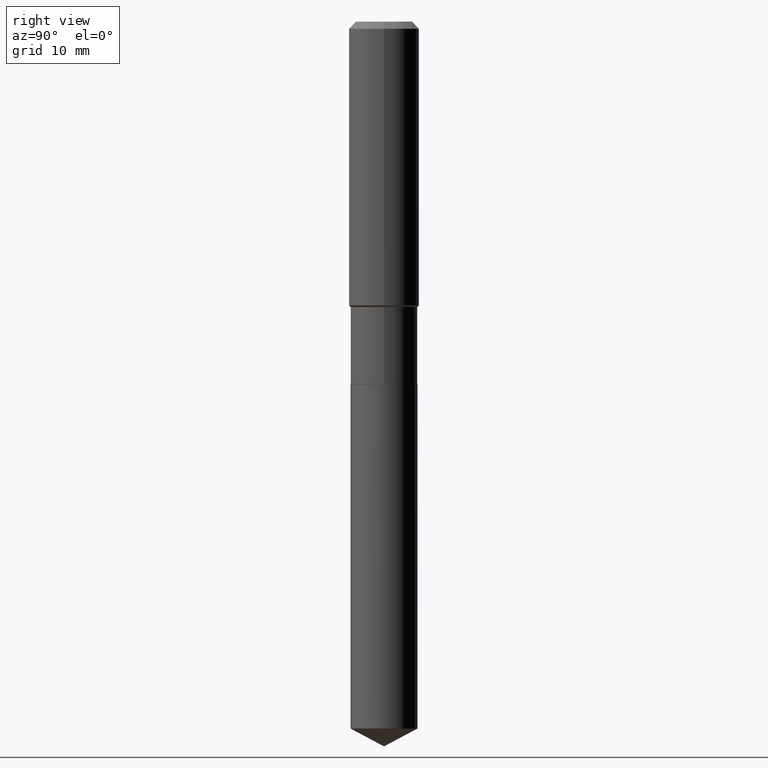
[diagram: clean part render]
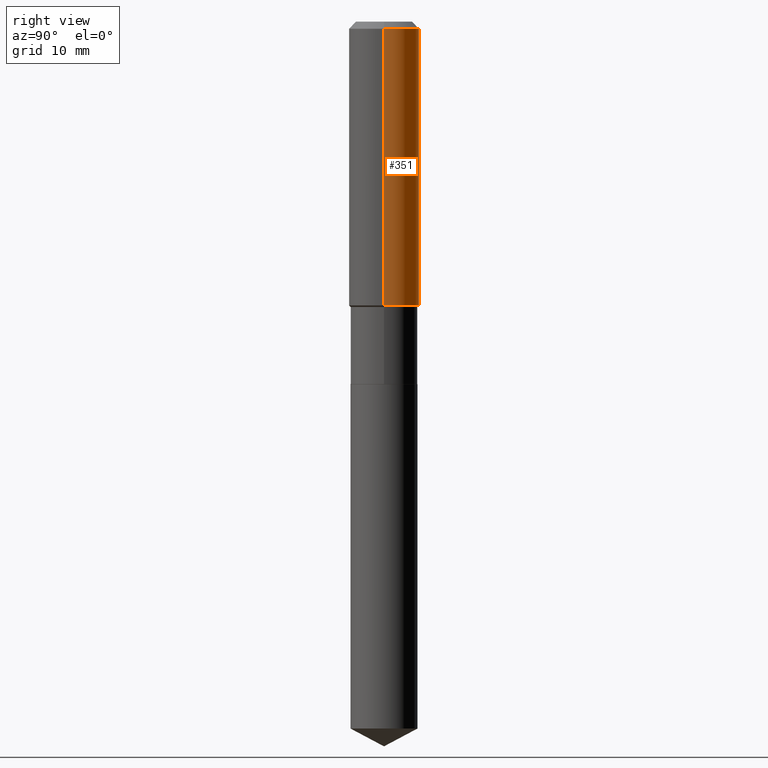
[diagram: same view with one face highlighted and labeled with its STEP entity id]
A machine part, right view. The second image highlights one B-rep face of the part: STEP entity #351.
In plain terms, the highlighted cylindrical surface (edge-blend (fillet) strip) has radius 5 mm, axis along (-0, 0, 1).
Its self-contained STEP definition (entity closure, byte-faithful):
#43 = VECTOR ( 'NONE', #86, 39.37007874015748143 ) ;
#49 = CARTESIAN_POINT ( 'NONE',  ( 0.1968500000000001082, -1.374596203102542397E-15, 9.598753983154305062E-30 ) ) ;
#56 = FACE_OUTER_BOUND ( 'NONE', #422, .T. ) ;
#85 = CIRCLE ( 'NONE', #434, 0.1968500000000000250 ) ;
#86 = DIRECTION ( 'NONE',  ( -2.445468806185136877E-29, 3.491481338843145188E-15, 1.000000000000000000 ) ) ;
#92 = CARTESIAN_POINT ( 'NONE',  ( -0.1968500000000001082, 1.398703375343757985E-15, -9.682923725166787881E-30 ) ) ;
#93 = AXIS2_PLACEMENT_3D ( 'NONE', #138, #404, #129 ) ;
#95 = CARTESIAN_POINT ( 'NONE',  ( -0.1968500000000000250, -1.441127886417702753E-15, -0.03937000000000029365 ) ) ;
#102 = ORIENTED_EDGE ( 'NONE', *, *, #246, .F. ) ;
#120 = LINE ( 'NONE', #49, #43 ) ;
#129 = DIRECTION ( 'NONE',  ( 1.000000000000000000, -6.982962677686266711E-15, 4.876176775795935793E-29 ) ) ;
#133 = VERTEX_POINT ( 'NONE', #207 ) ;
#138 = CARTESIAN_POINT ( 'NONE',  ( 0.000000000000000000, 0.000000000000000000, 0.000000000000000000 ) ) ;
#158 = VERTEX_POINT ( 'NONE', #295 ) ;
#172 = CIRCLE ( 'NONE', #452, 0.1968500000000002192 ) ;
#190 = CARTESIAN_POINT ( 'NONE',  ( 9.627810689950954155E-31, -1.374596203102556547E-16, -0.03937000000000029365 ) ) ;
#194 = ORIENTED_EDGE ( 'NONE', *, *, #380, .T. ) ;
#198 = EDGE_CURVE ( 'NONE', #158, #133, #172, .T. ) ;
#203 = DIRECTION ( 'NONE',  ( -2.445468806185136877E-29, 3.491481338843145188E-15, 1.000000000000000000 ) ) ;
#207 = CARTESIAN_POINT ( 'NONE',  ( -0.1968500000000002192, -4.143499527868906923E-15, -1.587349999999999595 ) ) ;
#217 = DIRECTION ( 'NONE',  ( -2.445468806185136597E-29, 3.491481338843145583E-15, 1.000000000000000000 ) ) ;
#224 = CARTESIAN_POINT ( 'NONE',  ( 0.1968500000000000250, -1.512055823412797189E-15, -0.03937000000000029365 ) ) ;
#246 = EDGE_CURVE ( 'NONE', #312, #464, #85, .T. ) ;
#258 = EDGE_CURVE ( 'NONE', #158, #312, #120, .T. ) ;
#295 = CARTESIAN_POINT ( 'NONE',  ( 0.1968500000000002192, -6.916799106315208686E-15, -1.587349999999999595 ) ) ;
#312 = VERTEX_POINT ( 'NONE', #224 ) ;
#321 = LINE ( 'NONE', #92, #370 ) ;
#327 = ORIENTED_EDGE ( 'NONE', *, *, #198, .T. ) ;
#351 = ADVANCED_FACE ( 'NONE', ( #56 ), #471, .T. ) ;
#370 = VECTOR ( 'NONE', #203, 39.37007874015748143 ) ;
#372 = DIRECTION ( 'NONE',  ( 1.000000000000000000, -6.982962677686265922E-15, 0.000000000000000000 ) ) ;
#380 = EDGE_CURVE ( 'NONE', #133, #464, #321, .T. ) ;
#404 = DIRECTION ( 'NONE',  ( -2.445468806185136597E-29, 3.491481338843145583E-15, 1.000000000000000000 ) ) ;
#407 = CARTESIAN_POINT ( 'NONE',  ( 3.881814909497976059E-29, -5.542202903212666289E-15, -1.587349999999999595 ) ) ;
#422 = EDGE_LOOP ( 'NONE', ( #327, #194, #102, #460 ) ) ;
#425 = DIRECTION ( 'NONE',  ( 1.000000000000000000, -6.982962677686265922E-15, 0.000000000000000000 ) ) ;
#434 = AXIS2_PLACEMENT_3D ( 'NONE', #190, #459, #425 ) ;
#452 = AXIS2_PLACEMENT_3D ( 'NONE', #407, #217, #372 ) ;
#459 = DIRECTION ( 'NONE',  ( -2.445468806185136597E-29, 3.491481338843145583E-15, 1.000000000000000000 ) ) ;
#460 = ORIENTED_EDGE ( 'NONE', *, *, #258, .F. ) ;
#464 = VERTEX_POINT ( 'NONE', #95 ) ;
#471 = CYLINDRICAL_SURFACE ( 'NONE', #93, 0.1968500000000001082 ) ;